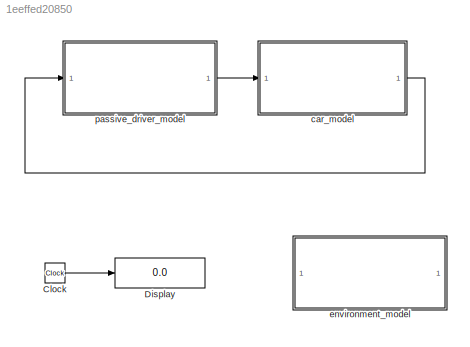
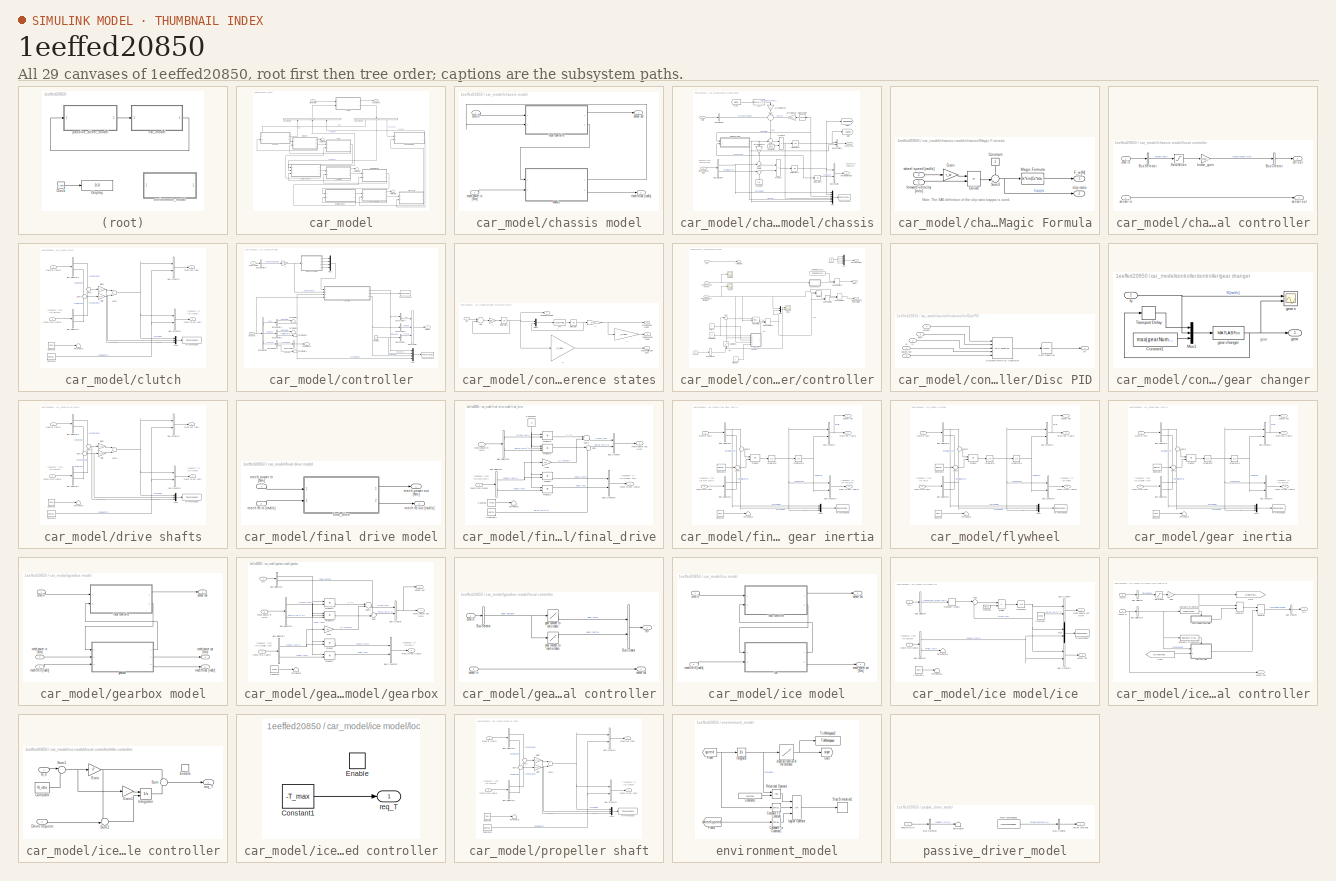
[diagram: thumbnail index - all 29 canvases of the model, root first then tree order]
MODEL slx_1eeffed20850
KIND model
BLOCK [Clock] Clock
BLOCK [Display] Display
  Decimation = 1
  Lockdown = off
  Ports = [1]
BLOCK [SubSystem] car_model
  FunctionWithSeparateData = off
  MaskHideContents = off
  MinAlgLoopOccurrences = off
  Opaque = off
  Ports = [1, 1]
  PropExecContextOutsideSubsystem = off
  RTWSystemCode = Auto
  RequestExecContextInheritance = off
BLOCK [BusCreator] car_model/Bus Creator
  DisplayOption = bar
  Inputs = 3
  Ports = [3, 1]
BLOCK [BusSelector] car_model/Bus Selector
  OutputSignals = ice,gearbox,chassis
  Ports = [1, 3]
BLOCK [Terminator] car_model/Terminator1
BLOCK [Terminator] car_model/Terminator2
BLOCK [Terminator] car_model/Terminator3
BLOCK [SubSystem] car_model/chassis model
  AncestorBlock = capsim_lib/Chassis/chassis_model_template
  FunctionWithSeparateData = off
  MaskHideContents = off
  MinAlgLoopOccurrences = off
  Opaque = off
  Ports = [2, 2]
  PropExecContextOutsideSubsystem = off
  RTWSystemCode = Auto
  RequestExecContextInheritance = off
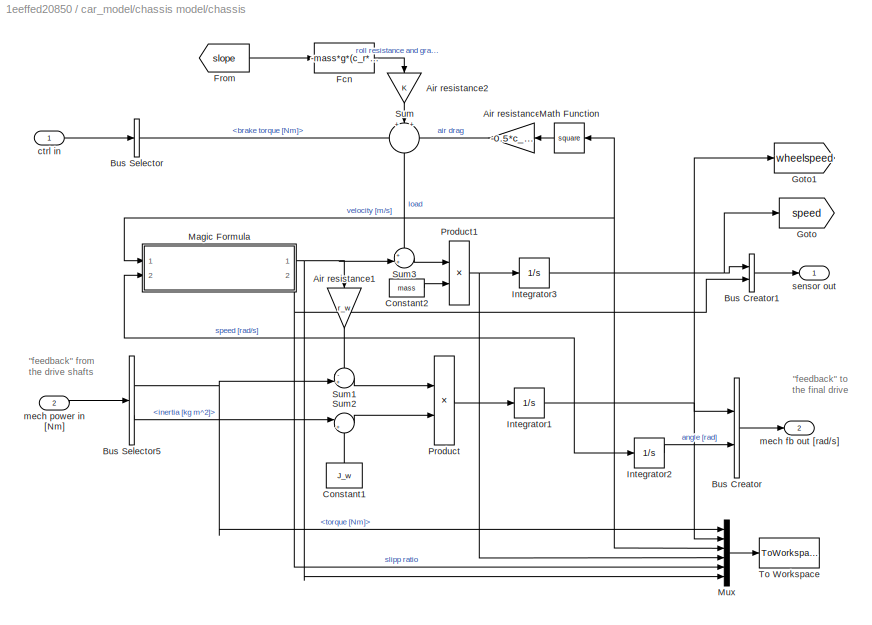
BLOCK [SubSystem] car_model/chassis model/chassis
  FunctionWithSeparateData = off
  MaskHideContents = off
  MinAlgLoopOccurrences = off
  Opaque = off
  Ports = [2, 2]
  PropExecContextOutsideSubsystem = off
  RTWSystemCode = Auto
  RequestExecContextInheritance = off
BLOCK [Gain] car_model/chassis model/chassis/Air resistance
  Gain = -0.5*c_w*A_a*Rho_a
BLOCK [Gain] car_model/chassis model/chassis/Air resistance1
  Gain = r_w
BLOCK [Gain] car_model/chassis model/chassis/Air resistance2
BLOCK [BusCreator] car_model/chassis model/chassis/Bus Creator
  DisplayOption = bar
  Inputs = 2
  Ports = [2, 1]
BLOCK [BusCreator] car_model/chassis model/chassis/Bus Creator1
  DisplayOption = bar
  Inputs = 2
  Ports = [2, 1]
BLOCK [BusSelector] car_model/chassis model/chassis/Bus Selector
  OutputSignals = brake torque [Nm]
  Ports = [1, 1]
BLOCK [BusSelector] car_model/chassis model/chassis/Bus Selector5
  OutputSignals = torque [Nm],inertia [kg m^2]
  Ports = [1, 2]
BLOCK [Constant] car_model/chassis model/chassis/Constant1
  Value = J_w
BLOCK [Constant] car_model/chassis model/chassis/Constant2
  Value = mass
BLOCK [Fcn] car_model/chassis model/chassis/Fcn
  Expr = -mass*g*(c_r*cos(u) + sin(u))
BLOCK [From] car_model/chassis model/chassis/From
  CloseFcn = tagdialog Close
  GotoTag = slope
  TagVisibility = global
BLOCK [Goto] car_model/chassis model/chassis/Goto
  GotoTag = speed
  TagVisibility = global
BLOCK [Goto] car_model/chassis model/chassis/Goto1
  GotoTag = wheelspeed
  TagVisibility = global
BLOCK [Integrator] car_model/chassis model/chassis/Integrator1
  InitialCondition = init_d
  Ports = [1, 1]
BLOCK [Integrator] car_model/chassis model/chassis/Integrator2
  Ports = [1, 1]
BLOCK [Integrator] car_model/chassis model/chassis/Integrator3
  InitialCondition = init_d*r_w
  Ports = [1, 1]
BLOCK [SubSystem] car_model/chassis model/chassis/Magic Formula
  FunctionWithSeparateData = off
  MaskHideContents = off
  MinAlgLoopOccurrences = off
  Opaque = off
  Ports = [2, 2]
  PropExecContextOutsideSubsystem = off
  RTWSystemCode = Auto
  RequestExecContextInheritance = off
BLOCK [Constant] car_model/chassis model/chassis/Magic Formula/Constant
BLOCK [Product] car_model/chassis model/chassis/Magic Formula/Divide
  InputSameDT = off
  Inputs = */
  OutDataTypeStr = Inherit: Inherit via internal rule
  Ports = [2, 1]
  RndMeth = Floor
  SaturateOnIntegerOverflow = off
BLOCK [Outport] car_model/chassis model/chassis/Magic Formula/F_w [N]
  IconDisplay = Port number
BLOCK [Gain] car_model/chassis model/chassis/Magic Formula/Gain
  Gain = r_w
  OutDataTypeStr = Inherit: Inherit via internal rule
  ParamDataTypeStr = Inherit: Inherit via internal rule
  SaturateOnIntegerOverflow = off
BLOCK [Fcn] car_model/chassis model/chassis/Magic Formula/Magic Formula
  Expr = Dx*sin(Cx*atan(Bx*u-Ex*(Bx*u-atan(Bx*u))))
BLOCK [Sum] car_model/chassis model/chassis/Magic Formula/Sum3
  IconShape = round
  InputSameDT = off
  Inputs = -+|
  OutDataTypeStr = Inherit: Inherit via internal rule
  Ports = [2, 1]
  SaturateOnIntegerOverflow = off
BLOCK [Inport] car_model/chassis model/chassis/Magic Formula/forward velocity [m//s]
  IconDisplay = Port number
BLOCK [Outport] car_model/chassis model/chassis/Magic Formula/slip ratio
  IconDisplay = Port number
  Port = 2
BLOCK [Inport] car_model/chassis model/chassis/Magic Formula/wheel speed [rad//s]
  IconDisplay = Port number
  Port = 2
BLOCK [Math] car_model/chassis model/chassis/Math Function
  Operator = square
  Ports = [1, 1]
BLOCK [Mux] car_model/chassis model/chassis/Mux
  DisplayOption = bar
  Inputs = 6
  Ports = [6, 1]
BLOCK [Product] car_model/chassis model/chassis/Product
  InputSameDT = off
  Inputs = */
  Ports = [2, 1]
  RndMeth = Floor
BLOCK [Product] car_model/chassis model/chassis/Product1
  InputSameDT = off
  Inputs = */
  Ports = [2, 1]
  RndMeth = Floor
BLOCK [Sum] car_model/chassis model/chassis/Sum
  IconShape = round
  InputSameDT = off
  Inputs = +|+|+
  OutDataTypeStr = Inherit: Inherit via internal rule
  Ports = [3, 1]
BLOCK [Sum] car_model/chassis model/chassis/Sum1
  IconShape = round
  InputSameDT = off
  Inputs = -+|
  OutDataTypeStr = Inherit: Inherit via internal rule
  Ports = [2, 1]
BLOCK [Sum] car_model/chassis model/chassis/Sum2
  IconShape = round
  InputSameDT = off
  Inputs = |++
  OutDataTypeStr = Inherit: Inherit via internal rule
  Ports = [2, 1]
BLOCK [Sum] car_model/chassis model/chassis/Sum3
  IconShape = round
  InputSameDT = off
  Inputs = ++|
  OutDataTypeStr = Inherit: Inherit via internal rule
  Ports = [2, 1]
BLOCK [ToWorkspace] car_model/chassis model/chassis/To Workspace
  MaxDataPoints = inf
  Ports = [1]
  SampleTime = -1
  VariableName = chassisout
BLOCK [Inport] car_model/chassis model/chassis/ctrl in
  IconDisplay = Port number
BLOCK [Outport] car_model/chassis model/chassis/mech fb out [rad//s]
  IconDisplay = Port number
  Port = 2
BLOCK [Inport] car_model/chassis model/chassis/mech power in [Nm]
  IconDisplay = Port number
  Port = 2
BLOCK [Outport] car_model/chassis model/chassis/sensor out
  IconDisplay = Port number
BLOCK [Inport] car_model/chassis model/cmd in
  IconDisplay = Port number
BLOCK [SubSystem] car_model/chassis model/local controller
  FunctionWithSeparateData = off
  MaskHideContents = off
  MinAlgLoopOccurrences = off
  Opaque = off
  Ports = [2, 2]
  PropExecContextOutsideSubsystem = off
  RTWSystemCode = Auto
  RequestExecContextInheritance = off
BLOCK [BusCreator] car_model/chassis model/local controller/Bus Creator
  DisplayOption = bar
  Inputs = 1
  Ports = [1, 1]
BLOCK [BusSelector] car_model/chassis model/local controller/Bus Selector
  OutputSignals = brake level
  Ports = [1, 1]
BLOCK [Saturate] car_model/chassis model/local controller/Saturation
  InputPortMap = u0
  LowerLimit = 0
  Ports = [1, 1]
  UpperLimit = 1
BLOCK [Gain] car_model/chassis model/local controller/brake_gain
  Gain = -brake_gain
BLOCK [Inport] car_model/chassis model/local controller/cmd in
  IconDisplay = Port number
BLOCK [Outport] car_model/chassis model/local controller/ctrl out
  IconDisplay = Port number
  Port = 2
BLOCK [Inport] car_model/chassis model/local controller/sensor in
  IconDisplay = Port number
  Port = 2
BLOCK [Outport] car_model/chassis model/local controller/sensor out
  IconDisplay = Port number
BLOCK [Outport] car_model/chassis model/mech fb out [rad//s]
  IconDisplay = Port number
  Port = 2
BLOCK [Inport] car_model/chassis model/mech power in [Nm]
  IconDisplay = Port number
  Port = 2
BLOCK [Outport] car_model/chassis model/sensor out
  IconDisplay = Port number
BLOCK [SubSystem] car_model/clutch
  AncestorBlock = capsim_lib/MechConverter/mechconverter_simple1_std
  FunctionWithSeparateData = off
  MaskHideContents = off
  MinAlgLoopOccurrences = off
  Opaque = off
  Ports = [2, 2]
  PropExecContextOutsideSubsystem = off
  RTWSystemCode = Auto
  RequestExecContextInheritance = off
BLOCK [BusCreator] car_model/clutch/Bus Creator1
  DisplayOption = bar
  Inputs = 2
  Ports = [2, 1]
BLOCK [BusCreator] car_model/clutch/Bus Creator5
  DisplayOption = bar
  Inputs = 2
  Ports = [2, 1]
BLOCK [BusSelector] car_model/clutch/Bus Selector1
  OutputSignals = speed [rad/s],angle [rad]
  Ports = [1, 2]
BLOCK [BusSelector] car_model/clutch/Bus Selector5
  OutputSignals = speed [rad/s],angle [rad]
  Ports = [1, 2]
BLOCK [Constant] car_model/clutch/Constant
  Value = mass
BLOCK [Constant] car_model/clutch/Constant1
  Value = inertia
BLOCK [Gain] car_model/clutch/Gain
  Gain = k_c
  OutDataTypeStr = Inherit: Inherit via internal rule
  ParamDataTypeStr = Inherit: Inherit via internal rule
  SaturateOnIntegerOverflow = off
BLOCK [Gain] car_model/clutch/Gain1
  Gain = c_c
  OutDataTypeStr = Inherit: Inherit via internal rule
  ParamDataTypeStr = Inherit: Inherit via internal rule
  SaturateOnIntegerOverflow = off
BLOCK [Mux] car_model/clutch/Mux
  DisplayOption = bar
  Inputs = 3
  Ports = [3, 1]
BLOCK [Sum] car_model/clutch/Sum2
  IconShape = round
  InputSameDT = off
  Inputs = +|-
  OutDataTypeStr = Inherit: Inherit via internal rule
  Ports = [2, 1]
BLOCK [Sum] car_model/clutch/Sum3
  IconShape = round
  InputSameDT = off
  Inputs = +|-
  OutDataTypeStr = Inherit: Inherit via internal rule
  Ports = [2, 1]
BLOCK [Sum] car_model/clutch/Sum4
  InputSameDT = off
  OutDataTypeStr = Inherit: Inherit via internal rule
  Ports = [2, 1]
  SaturateOnIntegerOverflow = off
BLOCK [Terminator] car_model/clutch/Terminator
BLOCK [ToWorkspace] car_model/clutch/To Workspace
  MaxDataPoints = inf
  Ports = [1]
  SampleTime = -1
  VariableName = clutchout
BLOCK [Inport] car_model/clutch/mech fb in [rad//s]
  IconDisplay = Port number
  Port = 2
BLOCK [Outport] car_model/clutch/mech fb out [Nm]
  IconDisplay = Port number
  Port = 2
BLOCK [Inport] car_model/clutch/mech in [rad//s]
  IconDisplay = Port number
BLOCK [Outport] car_model/clutch/mech out [Nm]
  IconDisplay = Port number
BLOCK [SubSystem] car_model/controller
  AncestorBlock = capsim_lib/Controller/controller_template
  FunctionWithSeparateData = off
  MaskHideContents = off
  MinAlgLoopOccurrences = off
  Opaque = off
  Ports = [2, 2]
  PropExecContextOutsideSubsystem = off
  RTWSystemCode = Auto
  RequestExecContextInheritance = off
BLOCK [Gain] car_model/controller/4
  Gain = T_max
  OutDataTypeStr = Inherit: Inherit via internal rule
  ParamDataTypeStr = Inherit: Inherit via internal rule
  SaturateOnIntegerOverflow = off
BLOCK [BusCreator] car_model/controller/Bus Creator
  DisplayOption = bar
  Inputs = 3
  Ports = [3, 1]
BLOCK [BusCreator] car_model/controller/Bus Creator1
  DisplayOption = bar
  Inputs = 1
  Ports = [1, 1]
BLOCK [BusCreator] car_model/controller/Bus Creator3
  DisplayOption = bar
  Inputs = 1
  Ports = [1, 1]
BLOCK [BusCreator] car_model/controller/Bus Creator4
  DisplayOption = bar
  Inputs = 1
  Ports = [1, 1]
BLOCK [BusCreator] car_model/controller/Bus Creator5
  DisplayOption = bar
  Inputs = 1
  Ports = [1, 1]
BLOCK [BusSelector] car_model/controller/Bus Selector
  OutputSignals = ice,gearbox,chassis
  Ports = [1, 3]
BLOCK [BusSelector] car_model/controller/Bus Selector1
  OutputSignals = torque [Nm],speed [rad/s]
  Ports = [1, 2]
BLOCK [BusSelector] car_model/controller/Bus Selector3
  OutputSignals = torque [Nm],inertia [kg m^2]
  Ports = [1, 2]
BLOCK [BusSelector] car_model/controller/Bus Selector4
  OutputSignals = velocity [m/s],slipp ratio
  Ports = [1, 2]
BLOCK [BusSelector] car_model/controller/Bus Selector5
  OutputSignals = Torque demand [%]
  Ports = [1, 1]
BLOCK [Constant] car_model/controller/Constant
  Value = 0
BLOCK [Mux] car_model/controller/Mux
  DisplayOption = bar
  Ports = [4, 1]
BLOCK [Mux] car_model/controller/Mux1
  DisplayOption = bar
  Ports = [4, 1]
BLOCK [SubSystem] car_model/controller/Reference states
  FunctionWithSeparateData = off
  MaskHideContents = off
  MinAlgLoopOccurrences = off
  Opaque = off
  Ports = [1, 4]
  PropExecContextOutsideSubsystem = off
  RTWSystemCode = Auto
  RequestExecContextInheritance = off
BLOCK [Gain] car_model/controller/Reference states/1
  Gain = i_f*gearRatio(1)
  OutDataTypeStr = Inherit: Inherit via internal rule
  ParamDataTypeStr = Inherit: Inherit via internal rule
  SaturateOnIntegerOverflow = off
BLOCK [Gain] car_model/controller/Reference states/2
  Gain = 1/tau_e
  OutDataTypeStr = Inherit: Inherit via internal rule
  ParamDataTypeStr = Inherit: Inherit via internal rule
  SaturateOnIntegerOverflow = off
BLOCK [Gain] car_model/controller/Reference states/5
  Gain = 1/r_w
  OutDataTypeStr = Inherit: Inherit via internal rule
  ParamDataTypeStr = Inherit: Inherit via internal rule
  SaturateOnIntegerOverflow = off
BLOCK [Gain] car_model/controller/Reference states/6
  Gain = i_f*gearRatio(1)/k_d
  OutDataTypeStr = Inherit: Inherit via internal rule
  ParamDataTypeStr = Inherit: Inherit via internal rule
  SaturateOnIntegerOverflow = off
BLOCK [Sum] car_model/controller/Reference states/Add
  InputSameDT = off
  Inputs = +-
  OutDataTypeStr = Inherit: Inherit via internal rule
  Ports = [2, 1]
  SaturateOnIntegerOverflow = off
BLOCK [Outport] car_model/controller/Reference states/Drive shaft torsion [rad]
  IconDisplay = Port number
BLOCK [Outport] car_model/controller/Reference states/Engine speed [rad//s]
  IconDisplay = Port number
  Port = 2
BLOCK [Outport] car_model/controller/Reference states/Engine torque [Nm]
  IconDisplay = Port number
  Port = 4
BLOCK [Fcn] car_model/controller/Reference states/Fcn
  Expr = (i_f*gearRatio(1)/r_w*u(1)-0.5*Rho_a*c_w*A_a*u(2)^2-mass*g*c_r)/(mass+i_f^2*gearRatio(1)^2/r_w^2*J_e)
BLOCK [Inport] car_model/controller/Reference states/In1
  IconDisplay = Port number
BLOCK [Integrator] car_model/controller/Reference states/Integrator
  InitialCondition = 28/3.6
  Ports = [1, 1]
BLOCK [Integrator] car_model/controller/Reference states/Integrator1
  InitialCondition = -8
  Ports = [1, 1]
BLOCK [Mux] car_model/controller/Reference states/Mux6
  DisplayOption = bar
  Inputs = 2
  Ports = [2, 1]
BLOCK [Outport] car_model/controller/Reference states/Wheel speed [rad//s]
  IconDisplay = Port number
  Port = 3
BLOCK [Terminator] car_model/controller/Terminator1
BLOCK [Terminator] car_model/controller/Terminator3
BLOCK [Terminator] car_model/controller/Terminator5
BLOCK [Terminator] car_model/controller/Terminator6
BLOCK [ToWorkspace] car_model/controller/To Workspace
  MaxDataPoints = inf
  Ports = [1]
  SampleTime = -1
  VariableName = controllerout
BLOCK [ToWorkspace] car_model/controller/To Workspace1
  MaxDataPoints = inf
  Ports = [1]
  SampleTime = -1
  VariableName = obsstates
BLOCK [Outport] car_model/controller/cmd out
  IconDisplay = Port number
  Port = 2
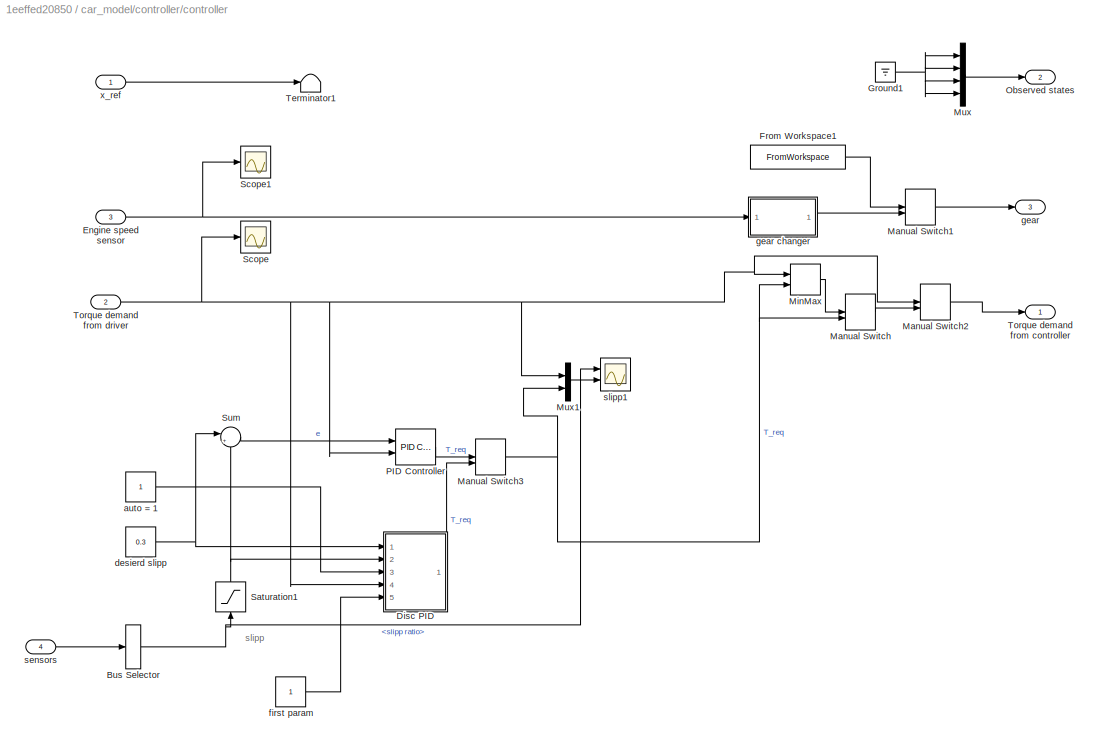
BLOCK [SubSystem] car_model/controller/controller
  FunctionWithSeparateData = off
  MaskHideContents = off
  MinAlgLoopOccurrences = off
  Opaque = off
  Ports = [4, 3]
  PropExecContextOutsideSubsystem = off
  RTWSystemCode = Auto
  RequestExecContextInheritance = off
BLOCK [BusSelector] car_model/controller/controller/Bus Selector
  OutputSignals = chassis.slipp ratio
  Ports = [1, 1]
BLOCK [SubSystem] car_model/controller/controller/Disc PID
  FunctionWithSeparateData = off
  MaskHideContents = off
  MinAlgLoopOccurrences = off
  Opaque = off
  Ports = [5, 1]
  PropExecContextOutsideSubsystem = off
  RTWSystemCode = Auto
  RequestExecContextInheritance = off
BLOCK [M-S-Function] car_model/controller/controller/Disc PID/Discrete-Time PID Controller
  FunctionName = mypidcontroller
  Parameters = [K;Ti;Td;mu;theta],ubounds,Ts,nofstates,fname
  Ports = [5, 1]
BLOCK [RateTransition] car_model/controller/controller/Disc PID/Rate Transition
BLOCK [Inport] car_model/controller/controller/Disc PID/amn
  IconDisplay = Port number
  Port = 3
BLOCK [Inport] car_model/controller/controller/Disc PID/param set
  IconDisplay = Port number
  Port = 5
BLOCK [Inport] car_model/controller/controller/Disc PID/rn
  IconDisplay = Port number
BLOCK [Inport] car_model/controller/controller/Disc PID/umann
  IconDisplay = Port number
  Port = 4
BLOCK [Outport] car_model/controller/controller/Disc PID/un
  IconDisplay = Port number
BLOCK [Inport] car_model/controller/controller/Disc PID/yn
  IconDisplay = Port number
  Port = 2
BLOCK [Inport] car_model/controller/controller/Engine speed sensor
  IconDisplay = Port number
  Port = 3
BLOCK [FromWorkspace] car_model/controller/controller/From Workspace1
  SampleTime = 0
  VariableName = [InputT InputG]
  ZeroCross = on
BLOCK [Ground] car_model/controller/controller/Ground1
BLOCK [ManualSwitch] car_model/controller/controller/Manual Switch
  CurrentSetting = 0
BLOCK [ManualSwitch] car_model/controller/controller/Manual Switch1
  CurrentSetting = 0
BLOCK [ManualSwitch] car_model/controller/controller/Manual Switch2
  CurrentSetting = 0
BLOCK [ManualSwitch] car_model/controller/controller/Manual Switch3
  CurrentSetting = 0
BLOCK [MinMax] car_model/controller/controller/MinMax
  InputSameDT = off
  Inputs = 2
  Ports = [2, 1]
  SaturateOnIntegerOverflow = off
BLOCK [Mux] car_model/controller/controller/Mux
  DisplayOption = bar
  Ports = [4, 1]
BLOCK [Mux] car_model/controller/controller/Mux1
  DisplayOption = bar
  Inputs = 2
  Ports = [2, 1]
BLOCK [Outport] car_model/controller/controller/Observed states
  IconDisplay = Port number
  Port = 2
BLOCK [Reference] car_model/controller/controller/PID Controller  REF=simulink/Continuous/PID Controller
  AntiWindupMode = back-calculation
  Controller = PID
  D = 112.335024874473
  DOutDataTypeStr = Inherit: Inherit via internal rule
  DOutMax = []
  DOutMin = []
  DParamDataTypeStr = Inherit: Inherit via internal rule
  DParamMax = []
  DParamMin = []
  ExternalReset = none
  FilterContinuousStateAttributes = ''
  FilterMethod = Forward Euler
  FilterOutDataTypeStr = Inherit: Inherit via internal rule
  FilterOutMax = []
  FilterOutMin = []
  FilterRTWStateStorageClass = Auto
  FilterStateMustResolveToSignalObject = off
  Form = Parallel
  I = 7225.43584206017
  IOutDataTypeStr = Inherit: Inherit via internal rule
  IOutMax = []
  IOutMin = []
  IParamDataTypeStr = Inherit: Inherit via internal rule
  IParamMax = []
  IParamMin = []
  IgnoreLimit = off
  InitialConditionForFilter = 0
  InitialConditionForIntegrator = 0
  InitialConditionSource = internal
  IntegratorContinuousStateAttributes = ''
  IntegratorMethod = Forward Euler
  IntegratorOutDataTypeStr = Inherit: Inherit via internal rule
  IntegratorOutMax = []
  IntegratorOutMin = []
  IntegratorRTWStateStorageClass = Auto
  IntegratorStateMustResolveToSignalObject = off
  Kb = 0.2
  KbOutDataTypeStr = Inherit: Inherit via internal rule
  KbOutMax = []
  KbOutMin = []
  KbParamDataTypeStr = Inherit: Inherit via internal rule
  KbParamMax = []
  KbParamMin = []
  Kt = 0.2
  KtOutDataTypeStr = Inherit: Inherit via internal rule
  KtOutMax = []
  KtOutMin = []
  KtParamDataTypeStr = Inherit: Inherit via internal rule
  KtParamMax = []
  KtParamMin = []
  LimitOutput = on
  LinearizeAsGain = off
  LockScale = off
  LowerSaturationLimit = 0
  N = 1322.21781915865
  NOutDataTypeStr = Inherit: Inherit via internal rule
  NOutMax = []
  NOutMin = []
  NParamDataTypeStr = Inherit: Inherit via internal rule
  NParamMax = []
  NParamMin = []
  P = 1807.69288725995
  POutDataTypeStr = Inherit: Inherit via internal rule
  POutMax = []
  POutMin = []
  PParamDataTypeStr = Inherit: Inherit via internal rule
  PParamMax = []
  PParamMin = []
  Ports = [2, 1]
  RndMeth = Floor
  SampleTime = 1
  SaturateOnIntegerOverflow = off
  SaturationOutDataTypeStr = Inherit: Same as input
  SaturationOutMax = []
  SaturationOutMin = []
  SourceBlock = simulink/Continuous/PID Controller
  SourceType = PID 1dof
  SumAccumDataTypeStr = Inherit: Inherit via internal rule
  SumDAccumDataTypeStr = Inherit: Inherit via internal rule
  SumDOutDataTypeStr = Inherit: Inherit via internal rule
  SumDOutMax = []
  SumDOutMin = []
  SumI1AccumDataTypeStr = Inherit: Inherit via internal rule
  SumI1OutDataTypeStr = Inherit: Inherit via internal rule
  SumI1OutMax = []
  SumI1OutMin = []
  SumI2AccumDataTypeStr = Inherit: Inherit via internal rule
  SumI2OutDataTypeStr = Inherit: Inherit via internal rule
  SumI2OutMax = []
  SumI2OutMin = []
  SumI3AccumDataTypeStr = Inherit: Inherit via internal rule
  SumI3OutDataTypeStr = Inherit: Inherit via internal rule
  SumI3OutMax = []
  SumI3OutMin = []
  SumOutDataTypeStr = Inherit: Inherit via internal rule
  SumOutMax = []
  SumOutMin = []
  TimeDomain = Continuous-time
  TrackingMode = on
  UpperSaturationLimit = T_max
  ZeroCross = on
BLOCK [Saturate] car_model/controller/controller/Saturation1
  InputPortMap = u0
  LowerLimit = -inf
  Ports = [1, 1]
  UpperLimit = 1
BLOCK [Scope] car_model/controller/controller/Scope
  DataFormat = StructureWithTime
  Floating = off
  NumInputPorts = 1
  Ports = [1]
  SampleTime = 0
  ShowLegends = off
  TimeRange = 100
  YMax = 400
  YMin = -50
BLOCK [Scope] car_model/controller/controller/Scope1
  DataFormat = StructureWithTime
  Floating = off
  NumInputPorts = 1
  Ports = [1]
  SampleTime = 0
  SaveName = ScopeData1
  ShowLegends = off
BLOCK [Sum] car_model/controller/controller/Sum
  IconShape = round
  InputSameDT = off
  Inputs = |+-
  OutDataTypeStr = Inherit: Inherit via internal rule
  Ports = [2, 1]
  SaturateOnIntegerOverflow = off
BLOCK [Terminator] car_model/controller/controller/Terminator1
BLOCK [Outport] car_model/controller/controller/Torque demand from controller
  IconDisplay = Port number
BLOCK [Inport] car_model/controller/controller/Torque demand from driver
  IconDisplay = Port number
  Port = 2
BLOCK [Constant] car_model/controller/controller/auto = 1
BLOCK [Constant] car_model/controller/controller/desierd slipp
  Value = 0.3
BLOCK [Constant] car_model/controller/controller/first param
BLOCK [Outport] car_model/controller/controller/gear
  IconDisplay = Port number
  Port = 3
BLOCK [SubSystem] car_model/controller/controller/gear changer
  FunctionWithSeparateData = off
  MaskHideContents = off
  MinAlgLoopOccurrences = off
  Opaque = off
  Ports = [1, 1]
  PropExecContextOutsideSubsystem = off
  RTWSystemCode = Auto
  RequestExecContextInheritance = off
BLOCK [Constant] car_model/controller/controller/gear changer/Constant1
  Value = max(gearNumber)
BLOCK [Mux] car_model/controller/controller/gear changer/Mux1
  DisplayOption = bar
  Inputs = 3
  Ports = [3, 1]
BLOCK [Inport] car_model/controller/controller/gear changer/N
  IconDisplay = Port number
BLOCK [TransportDelay] car_model/controller/controller/gear changer/Transport Delay
  DelayTime = 0.07
  Ports = [1, 1]
BLOCK [Outport] car_model/controller/controller/gear changer/gear
  IconDisplay = Port number
BLOCK [MATLABFcn] car_model/controller/controller/gear changer/gear changer
  MATLABFcn = gearchange(u(1),u(2),u(3))
  Ports = [1, 1]
BLOCK [Scope] car_model/controller/controller/gear changer/gear s
  DataFormat = StructureWithTime
  Floating = off
  LegendLocations = 0.9306     0.93925    0.050418    0.022044\n0.91445     0.46425    0.066614    0.022044
  LimitDataPoints = off
  NumInputPorts = 2
  Ports = [2]
  SampleTime = 0
  SaveName = ScopeData7
  ShowLegends = on
  YMax = 5~5
  YMin = -5~-5
BLOCK [Inport] car_model/controller/controller/sensors
  IconDisplay = Port number
  Port = 4
BLOCK [Scope] car_model/controller/controller/slipp1
  DataFormat = StructureWithTime
  Floating = off
  LimitDataPoints = off
  NumInputPorts = 2
  Ports = [2]
  SampleTime = 0
  SaveName = ScopeData2
  ShowLegends = on
  TimeRange = 100
  YMax = 3~400
  YMin = -0.5~-25
BLOCK [Inport] car_model/controller/controller/x_ref
  IconDisplay = Port number
BLOCK [Inport] car_model/controller/driver cmd in
  IconDisplay = Port number
BLOCK [Inport] car_model/controller/sensor in
  IconDisplay = Port number
  Port = 2
BLOCK [Outport] car_model/controller/vehicle fb out
  IconDisplay = Port number
BLOCK [SubSystem] car_model/drive shafts
  AncestorBlock = capsim_lib/MechConverter/mechconverter_simple1_std
  FunctionWithSeparateData = off
  MaskHideContents = off
  MinAlgLoopOccurrences = off
  Opaque = off
  Ports = [2, 2]
  PropExecContextOutsideSubsystem = off
  RTWSystemCode = Auto
  RequestExecContextInheritance = off
BLOCK [BusCreator] car_model/drive shafts/Bus Creator1
  DisplayOption = bar
  Inputs = 2
  Ports = [2, 1]
BLOCK [BusCreator] car_model/drive shafts/Bus Creator5
  DisplayOption = bar
  Inputs = 2
  Ports = [2, 1]
BLOCK [BusSelector] car_model/drive shafts/Bus Selector1
  OutputSignals = speed [rad/s],angle [rad]
  Ports = [1, 2]
BLOCK [BusSelector] car_model/drive shafts/Bus Selector5
  OutputSignals = speed [rad/s],angle [rad]
  Ports = [1, 2]
BLOCK [Constant] car_model/drive shafts/Constant
  Value = mass
BLOCK [Constant] car_model/drive shafts/Constant1
  Value = inertia
BLOCK [Gain] car_model/drive shafts/Gain
  Gain = k_d
  OutDataTypeStr = Inherit: Inherit via internal rule
  ParamDataTypeStr = Inherit: Inherit via internal rule
  SaturateOnIntegerOverflow = off
BLOCK [Gain] car_model/drive shafts/Gain1
  Gain = c_d
  OutDataTypeStr = Inherit: Inherit via internal rule
  ParamDataTypeStr = Inherit: Inherit via internal rule
  SaturateOnIntegerOverflow = off
BLOCK [Mux] car_model/drive shafts/Mux
  DisplayOption = bar
  Inputs = 3
  Ports = [3, 1]
BLOCK [Sum] car_model/drive shafts/Sum2
  IconShape = round
  InputSameDT = off
  Inputs = +|-
  OutDataTypeStr = Inherit: Inherit via internal rule
  Ports = [2, 1]
BLOCK [Sum] car_model/drive shafts/Sum3
  IconShape = round
  InputSameDT = off
  Inputs = +|-
  OutDataTypeStr = Inherit: Inherit via internal rule
  Ports = [2, 1]
BLOCK [Sum] car_model/drive shafts/Sum4
  InputSameDT = off
  OutDataTypeStr = Inherit: Inherit via internal rule
  Ports = [2, 1]
  SaturateOnIntegerOverflow = off
BLOCK [Terminator] car_model/drive shafts/Terminator
BLOCK [ToWorkspace] car_model/drive shafts/To Workspace
  MaxDataPoints = inf
  Ports = [1]
  SampleTime = -1
  VariableName = driveshaftsout
BLOCK [Inport] car_model/drive shafts/mech fb in [rad//s]
  IconDisplay = Port number
  Port = 2
BLOCK [Outport] car_model/drive shafts/mech fb out [Nm]
  IconDisplay = Port number
  Port = 2
BLOCK [Inport] car_model/drive shafts/mech in [rad//s]
  IconDisplay = Port number
BLOCK [Outport] car_model/drive shafts/mech out [Nm]
  IconDisplay = Port number
BLOCK [Inport] car_model/driver cmd in
  IconDisplay = Port number
BLOCK [SubSystem] car_model/final drive model
  AncestorBlock = capsim_lib/Gearbox/gearbox_template
  FunctionWithSeparateData = off
  MaskHideContents = off
  MinAlgLoopOccurrences = off
  Opaque = off
  Ports = [2, 2]
  PropExecContextOutsideSubsystem = off
  RTWSystemCode = Auto
  RequestExecContextInheritance = off
BLOCK [SubSystem] car_model/final drive model/final_drive
  FunctionWithSeparateData = off
  MaskHideContents = off
  MinAlgLoopOccurrences = off
  Opaque = off
  Ports = [2, 2]
  PropExecContextOutsideSubsystem = off
  RTWSystemCode = Auto
  RequestExecContextInheritance = off
BLOCK [BusCreator] car_model/final drive model/final_drive/Bus Creator
  DisplayOption = bar
  Inputs = 2
  Ports = [2, 1]
BLOCK [BusCreator] car_model/final drive model/final_drive/Bus Creator5
  DisplayOption = bar
  Inputs = 2
  Ports = [2, 1]
BLOCK [BusSelector] car_model/final drive model/final_drive/Bus Selector1
  OutputSignals = speed [rad/s],angle [rad]
  Ports = [1, 2]
BLOCK [BusSelector] car_model/final drive model/final_drive/Bus Selector5
  OutputSignals = torque [Nm],inertia [kg m^2]
  Ports = [1, 2]
BLOCK [Constant] car_model/final drive model/final_drive/Constant
  Value = mass
BLOCK [Constant] car_model/final drive model/final_drive/Constant1
  Value = i_f
BLOCK [Constant] car_model/final drive model/final_drive/Constant4
  Value = inertia
BLOCK [Gain] car_model/final drive model/final_drive/Gain
  Gain = b_f
  OutDataTypeStr = Inherit: Inherit via internal rule
  ParamDataTypeStr = Inherit: Inherit via internal rule
  SaturateOnIntegerOverflow = off
BLOCK [Product] car_model/final drive model/final_drive/Product
  InputSameDT = off
  Inputs = **
  Ports = [2, 1]
  RndMeth = Floor
BLOCK [Product] car_model/final drive model/final_drive/Product1
  InputSameDT = off
  Inputs = **
  Ports = [2, 1]
  RndMeth = Floor
BLOCK [Product] car_model/final drive model/final_drive/Product2
  InputSameDT = off
  Ports = [2, 1]
  RndMeth = Floor
BLOCK [Product] car_model/final drive model/final_drive/Product3
  InputSameDT = off
  Inputs = 3
  Ports = [3, 1]
  RndMeth = Floor
BLOCK [Sum] car_model/final drive model/final_drive/Sum
  IconShape = round
  InputSameDT = off
  Inputs = |++
  OutDataTypeStr = Inherit: Inherit via internal rule
  Ports = [2, 1]
  SaturateOnIntegerOverflow = off
BLOCK [Sum] car_model/final drive model/final_drive/Sum1
  InputSameDT = off
  Inputs = +-
  OutDataTypeStr = Inherit: Inherit via internal rule
  Ports = [2, 1]
  SaturateOnIntegerOverflow = off
BLOCK [Terminator] car_model/final drive model/final_drive/Terminator
BLOCK [Inport] car_model/final drive model/final_drive/mech fb in [rad//s]
  IconDisplay = Port number
  Port = 2
BLOCK [Outport] car_model/final drive model/final_drive/mech fb out [rad//s]
  IconDisplay = Port number
  Port = 2
BLOCK [Inport] car_model/final drive model/final_drive/mech power in [Nm]
  IconDisplay = Port number
BLOCK [Outport] car_model/final drive model/final_drive/mech power out [Nm]
  IconDisplay = Port number
BLOCK [Inport] car_model/final drive model/mech fb in [rad//s]
  IconDisplay = Port number
  Port = 2
BLOCK [Outport] car_model/final drive model/mech fb out [rad//s]
  IconDisplay = Port number
  Port = 2
BLOCK [Inport] car_model/final drive model/mech power in [Nm]
  IconDisplay = Port number
BLOCK [Outport] car_model/final drive model/mech power out [Nm]
  IconDisplay = Port number
BLOCK [SubSystem] car_model/final gear inertia
  AncestorBlock = capsim_lib/Inertia/inertia_simple1_std
  FunctionWithSeparateData = off
  MaskHideContents = off
  MinAlgLoopOccurrences = off
  Opaque = off
  Ports = [2, 3]
  PropExecContextOutsideSubsystem = off
  RTWSystemCode = Auto
  RequestExecContextInheritance = off
BLOCK [BusCreator] car_model/final gear inertia/Bus Creator1
  DisplayOption = bar
  Inputs = 2
  Ports = [2, 1]
BLOCK [BusCreator] car_model/final gear inertia/Bus Creator5
  DisplayOption = bar
  Inputs = 2
  Ports = [2, 1]
BLOCK [BusSelector] car_model/final gear inertia/Bus Selector1
  OutputSignals = torque [Nm],inertia [kg m^2]
  Ports = [1, 2]
BLOCK [BusSelector] car_model/final gear inertia/Bus Selector5
  OutputSignals = torque [Nm],inertia [kg m^2]
  Ports = [1, 2]
BLOCK [Constant] car_model/final gear inertia/Constant
  Value = mass
BLOCK [Constant] car_model/final gear inertia/Constant1
  Value = inertia
BLOCK [Integrator] car_model/final gear inertia/Integrator
  InitialCondition = speedinit
  Ports = [1, 1]
BLOCK [Integrator] car_model/final gear inertia/Integrator1
  InitialCondition = angleinit
  Ports = [1, 1]
BLOCK [Mux] car_model/final gear inertia/Mux
  DisplayOption = bar
  Inputs = 3
  Ports = [3, 1]
BLOCK [Product] car_model/final gear inertia/Product
  InputSameDT = off
  Inputs = */
  Ports = [2, 1]
  RndMeth = Floor
BLOCK [Sum] car_model/final gear inertia/Sum1
  IconShape = round
  InputSameDT = off
  Inputs = +++
  OutDataTypeStr = Inherit: Inherit via internal rule
  Ports = [3, 1]
BLOCK [Sum] car_model/final gear inertia/Sum2
  IconShape = round
  InputSameDT = off
  Inputs = +|-
  OutDataTypeStr = Inherit: Inherit via internal rule
  Ports = [2, 1]
BLOCK [Terminator] car_model/final gear inertia/Terminator
BLOCK [ToWorkspace] car_model/final gear inertia/To Workspace
  MaxDataPoints = inf
  Ports = [1]
  SampleTime = -1
  VariableName = finalgearout
BLOCK [Inport] car_model/final gear inertia/mech fb in [Nm]
  IconDisplay = Port number
  Port = 2
BLOCK [Outport] car_model/final gear inertia/mech fb out [rad//s]
  IconDisplay = Port number
  Port = 3
BLOCK [Inport] car_model/final gear inertia/mech in [Nm]
  IconDisplay = Port number
BLOCK [Outport] car_model/final gear inertia/mech out [rad//s]
  IconDisplay = Port number
  Port = 2
BLOCK [Outport] car_model/final gear inertia/sensor out
  IconDisplay = Port number
BLOCK [SubSystem] car_model/flywheel
  AncestorBlock = capsim_lib/Inertia/inertia_simple1_std
  FunctionWithSeparateData = off
  MaskHideContents = off
  MinAlgLoopOccurrences = off
  Opaque = off
  Ports = [2, 3]
  PropExecContextOutsideSubsystem = off
  RTWSystemCode = Auto
  RequestExecContextInheritance = off
BLOCK [BusCreator] car_model/flywheel/Bus Creator1
  DisplayOption = bar
  Inputs = 2
  Ports = [2, 1]
BLOCK [BusCreator] car_model/flywheel/Bus Creator5
  DisplayOption = bar
  Inputs = 2
  Ports = [2, 1]
BLOCK [BusSelector] car_model/flywheel/Bus Selector1
  OutputSignals = torque [Nm],inertia [kg m^2]
  Ports = [1, 2]
BLOCK [BusSelector] car_model/flywheel/Bus Selector5
  OutputSignals = torque [Nm],inertia [kg m^ 2]
  Ports = [1, 2]
BLOCK [Constant] car_model/flywheel/Constant
  Value = mass
BLOCK [Constant] car_model/flywheel/Constant1
  Value = inertia
BLOCK [Integrator] car_model/flywheel/Integrator
  InitialCondition = speedinit
  Ports = [1, 1]
BLOCK [Integrator] car_model/flywheel/Integrator1
  InitialCondition = angleinit
  Ports = [1, 1]
BLOCK [Mux] car_model/flywheel/Mux
  DisplayOption = bar
  Inputs = 3
  Ports = [3, 1]
BLOCK [Product] car_model/flywheel/Product
  InputSameDT = off
  Inputs = */
  Ports = [2, 1]
  RndMeth = Floor
BLOCK [Sum] car_model/flywheel/Sum1
  IconShape = round
  InputSameDT = off
  Inputs = +++
  OutDataTypeStr = Inherit: Inherit via internal rule
  Ports = [3, 1]
BLOCK [Sum] car_model/flywheel/Sum2
  IconShape = round
  InputSameDT = off
  Inputs = +|-
  OutDataTypeStr = Inherit: Inherit via internal rule
  Ports = [2, 1]
BLOCK [Terminator] car_model/flywheel/Terminator
BLOCK [ToWorkspace] car_model/flywheel/To Workspace
  MaxDataPoints = inf
  Ports = [1]
  SampleTime = -1
  VariableName = flywheelout
BLOCK [Inport] car_model/flywheel/mech fb in [Nm]
  IconDisplay = Port number
  Port = 2
BLOCK [Outport] car_model/flywheel/mech fb out [rad//s]
  IconDisplay = Port number
  Port = 3
BLOCK [Inport] car_model/flywheel/mech in [Nm]
  IconDisplay = Port number
BLOCK [Outport] car_model/flywheel/mech out [rad//s]
  IconDisplay = Port number
  Port = 2
BLOCK [Outport] car_model/flywheel/sensor out
  IconDisplay = Port number
BLOCK [SubSystem] car_model/gear inertia
  AncestorBlock = capsim_lib/Inertia/inertia_simple1_std
  FunctionWithSeparateData = off
  MaskHideContents = off
  MinAlgLoopOccurrences = off
  Opaque = off
  Ports = [2, 3]
  PropExecContextOutsideSubsystem = off
  RTWSystemCode = Auto
  RequestExecContextInheritance = off
BLOCK [BusCreator] car_model/gear inertia/Bus Creator1
  DisplayOption = bar
  Inputs = 2
  Ports = [2, 1]
BLOCK [BusCreator] car_model/gear inertia/Bus Creator5
  DisplayOption = bar
  Inputs = 2
  Ports = [2, 1]
BLOCK [BusSelector] car_model/gear inertia/Bus Selector1
  OutputSignals = torque [Nm],inertia [kg m^2]
  Ports = [1, 2]
BLOCK [BusSelector] car_model/gear inertia/Bus Selector5
  OutputSignals = torque [Nm],inertia [kg m^2]
  Ports = [1, 2]
BLOCK [Constant] car_model/gear inertia/Constant
  Value = mass
BLOCK [Constant] car_model/gear inertia/Constant1
  Value = inertia
BLOCK [Integrator] car_model/gear inertia/Integrator
  InitialCondition = speedinit
  Ports = [1, 1]
BLOCK [Integrator] car_model/gear inertia/Integrator1
  InitialCondition = angleinit
  Ports = [1, 1]
BLOCK [Mux] car_model/gear inertia/Mux
  DisplayOption = bar
  Inputs = 3
  Ports = [3, 1]
BLOCK [Product] car_model/gear inertia/Product
  InputSameDT = off
  Inputs = */
  Ports = [2, 1]
  RndMeth = Floor
BLOCK [Sum] car_model/gear inertia/Sum1
  IconShape = round
  InputSameDT = off
  Inputs = +++
  OutDataTypeStr = Inherit: Inherit via internal rule
  Ports = [3, 1]
BLOCK [Sum] car_model/gear inertia/Sum2
  IconShape = round
  InputSameDT = off
  Inputs = +|-
  OutDataTypeStr = Inherit: Inherit via internal rule
  Ports = [2, 1]
BLOCK [Terminator] car_model/gear inertia/Terminator
BLOCK [ToWorkspace] car_model/gear inertia/To Workspace
  MaxDataPoints = inf
  Ports = [1]
  SampleTime = -1
  VariableName = gearinertiaout
BLOCK [Inport] car_model/gear inertia/mech fb in [Nm]
  IconDisplay = Port number
  Port = 2
BLOCK [Outport] car_model/gear inertia/mech fb out [rad//s]
  IconDisplay = Port number
  Port = 3
BLOCK [Inport] car_model/gear inertia/mech in [Nm]
  IconDisplay = Port number
BLOCK [Outport] car_model/gear inertia/mech out [rad//s]
  IconDisplay = Port number
  Port = 2
BLOCK [Outport] car_model/gear inertia/sensor out
  IconDisplay = Port number
BLOCK [SubSystem] car_model/gearbox model
  AncestorBlock = capsim_lib/Gearbox/gearbox_template
  FunctionWithSeparateData = off
  MaskHideContents = off
  MinAlgLoopOccurrences = off
  Opaque = off
  Ports = [3, 3]
  PropExecContextOutsideSubsystem = off
  RTWSystemCode = Auto
  RequestExecContextInheritance = off
BLOCK [Inport] car_model/gearbox model/cmd in
  IconDisplay = Port number
BLOCK [SubSystem] car_model/gearbox model/gearbox
  FunctionWithSeparateData = off
  MaskHideContents = off
  MinAlgLoopOccurrences = off
  Opaque = off
  Ports = [3, 3]
  PropExecContextOutsideSubsystem = off
  RTWSystemCode = Auto
  RequestExecContextInheritance = off
BLOCK [BusCreator] car_model/gearbox model/gearbox/Bus Creator
  DisplayOption = bar
  Inputs = 2
  Ports = [2, 1]
BLOCK [BusCreator] car_model/gearbox model/gearbox/Bus Creator5
  DisplayOption = bar
  Inputs = 2
  Ports = [2, 1]
BLOCK [BusSelector] car_model/gearbox model/gearbox/Bus Selector1
  OutputSignals = speed [rad/s],angle [rad]
  Ports = [1, 2]
BLOCK [BusSelector] car_model/gearbox model/gearbox/Bus Selector2
  OutputSignals = gear ratio,gear inertia
  Ports = [1, 2]
BLOCK [BusSelector] car_model/gearbox model/gearbox/Bus Selector5
  OutputSignals = torque [Nm],inertia [kg m^2]
  Ports = [1, 2]
BLOCK [Constant] car_model/gearbox model/gearbox/Constant
  Value = mass
BLOCK [Gain] car_model/gearbox model/gearbox/Gain
  Gain = b_t
  OutDataTypeStr = Inherit: Inherit via internal rule
  ParamDataTypeStr = Inherit: Inherit via internal rule
  SaturateOnIntegerOverflow = off
BLOCK [Product] car_model/gearbox model/gearbox/Product
  InputSameDT = off
  Inputs = **
  Ports = [2, 1]
  RndMeth = Floor
BLOCK [Product] car_model/gearbox model/gearbox/Product1
  InputSameDT = off
  Inputs = **
  Ports = [2, 1]
  RndMeth = Floor
BLOCK [Product] car_model/gearbox model/gearbox/Product2
  InputSameDT = off
  Ports = [2, 1]
  RndMeth = Floor
BLOCK [Product] car_model/gearbox model/gearbox/Product3
  InputSameDT = off
  Inputs = 3
  Ports = [3, 1]
  RndMeth = Floor
BLOCK [Sum] car_model/gearbox model/gearbox/Sum
  IconShape = round
  InputSameDT = off
  Inputs = ++|
  OutDataTypeStr = Inherit: Inherit via internal rule
  Ports = [2, 1]
  SaturateOnIntegerOverflow = off
BLOCK [Sum] car_model/gearbox model/gearbox/Sum1
  InputSameDT = off
  Inputs = +-
  OutDataTypeStr = Inherit: Inherit via internal rule
  Ports = [2, 1]
  SaturateOnIntegerOverflow = off
BLOCK [Terminator] car_model/gearbox model/gearbox/Terminator
BLOCK [Inport] car_model/gearbox model/gearbox/ctrl
  IconDisplay = Port number
BLOCK [Inport] car_model/gearbox model/gearbox/mech fb in [rad//s]
  IconDisplay = Port number
  Port = 3
BLOCK [Outport] car_model/gearbox model/gearbox/mech fb out [rad//s]
  IconDisplay = Port number
  Port = 3
BLOCK [Inport] car_model/gearbox model/gearbox/mech power in [Nm]
  IconDisplay = Port number
  Port = 2
BLOCK [Outport] car_model/gearbox model/gearbox/mech power out [Nm]
  IconDisplay = Port number
  Port = 2
BLOCK [Outport] car_model/gearbox model/gearbox/sensor out
  IconDisplay = Port number
BLOCK [SubSystem] car_model/gearbox model/local controller
  FunctionWithSeparateData = off
  MaskHideContents = off
  MinAlgLoopOccurrences = off
  Opaque = off
  Ports = [2, 2]
  PropExecContextOutsideSubsystem = off
  RTWSystemCode = Auto
  RequestExecContextInheritance = off
BLOCK [BusCreator] car_model/gearbox model/local controller/Bus Creator
  DisplayOption = bar
  Inputs = 2
  Ports = [2, 1]
BLOCK [BusSelector] car_model/gearbox model/local controller/Bus Selector
  OutputSignals = gear number
  Ports = [1, 1]
BLOCK [Inport] car_model/gearbox model/local controller/cmd in
  IconDisplay = Port number
BLOCK [Outport] car_model/gearbox model/local controller/ctrl
  IconDisplay = Port number
  Port = 2
BLOCK [Lookup] car_model/gearbox model/local controller/gear number to inertia table
  InputValues = gearNumber
  LookUpMeth = Interpolation-Use End Values
  Table = gearInertia
BLOCK [Lookup] car_model/gearbox model/local controller/gear number to ratio table
  InputValues = gearNumber
  LookUpMeth = Interpolation-Use End Values
  Table = gearRatio
BLOCK [Inport] car_model/gearbox model/local controller/sensor in
  IconDisplay = Port number
  Port = 2
BLOCK [Outport] car_model/gearbox model/local controller/sensor out
  IconDisplay = Port number
BLOCK [Inport] car_model/gearbox model/mech fb in [rad//s]
  IconDisplay = Port number
  Port = 3
BLOCK [Outport] car_model/gearbox model/mech fb out [rad//s]
  IconDisplay = Port number
  Port = 3
BLOCK [Inport] car_model/gearbox model/mech power in [Nm]
  IconDisplay = Port number
  Port = 2
BLOCK [Outport] car_model/gearbox model/mech power out [Nm]
  IconDisplay = Port number
  Port = 2
BLOCK [Outport] car_model/gearbox model/sensor out
  IconDisplay = Port number
BLOCK [SubSystem] car_model/ice model
  FunctionWithSeparateData = off
  MaskHideContents = off
  MinAlgLoopOccurrences = off
  Opaque = off
  Ports = [2, 2]
  PropExecContextOutsideSubsystem = off
  RTWSystemCode = Auto
  RequestExecContextInheritance = off
BLOCK [Inport] car_model/ice model/cmd in
  IconDisplay = Port number
BLOCK [SubSystem] car_model/ice model/ice
  FunctionWithSeparateData = off
  MaskHideContents = off
  MinAlgLoopOccurrences = off
  Opaque = off
  Ports = [2, 2]
  PropExecContextOutsideSubsystem = off
  RTWSystemCode = Auto
  RequestExecContextInheritance = off
BLOCK [BusCreator] car_model/ice model/ice/Bus Creator
  DisplayOption = bar
  Inputs = 2
  Ports = [2, 1]
BLOCK [BusCreator] car_model/ice model/ice/Bus Creator1
  DisplayOption = bar
  Inputs = 2
  Ports = [2, 1]
BLOCK [BusSelector] car_model/ice model/ice/Bus Selector
  OutputSignals = requested torque [Nm]
  Ports = [1, 1]
BLOCK [BusSelector] car_model/ice model/ice/Bus Selector1
  OutputSignals = speed [rad/s],angle [rad]
  Ports = [1, 2]
BLOCK [Constant] car_model/ice model/ice/Constant
  Value = tau_e
BLOCK [Constant] car_model/ice model/ice/Constant1
  Value = inertia
BLOCK [Constant] car_model/ice model/ice/Constant3
  Value = mass
BLOCK [Product] car_model/ice model/ice/Divide
  InputSameDT = off
  Inputs = */
  OutDataTypeStr = Inherit: Inherit via internal rule
  Ports = [2, 1]
  RndMeth = Floor
  SaturateOnIntegerOverflow = off
BLOCK [Integrator] car_model/ice model/ice/Integrator
  InitialCondition = init_T
  Ports = [1, 1]
BLOCK [Mux] car_model/ice model/ice/Mux
  DisplayOption = bar
  Inputs = 2
  Ports = [2, 1]
BLOCK [Sum] car_model/ice model/ice/Sum
  IconShape = round
  InputSameDT = off
  Inputs = |+-
  OutDataTypeStr = Inherit: Inherit via internal rule
  Ports = [2, 1]
  SaturateOnIntegerOverflow = off
BLOCK [Terminator] car_model/ice model/ice/Terminator2
BLOCK [Terminator] car_model/ice model/ice/Terminator3
BLOCK [ToWorkspace] car_model/ice model/ice/To Workspace
  MaxDataPoints = inf
  Ports = [1]
  SampleTime = -1
  VariableName = iceout
BLOCK [TransportDelay] car_model/ice model/ice/Transport Delay1
  DelayTime = tau_d
  Ports = [1, 1]
BLOCK [Inport] car_model/ice model/ice/ctrl
  IconDisplay = Port number
BLOCK [Inport] car_model/ice model/ice/mech fb in [rad//s]
  IconDisplay = Port number
  Port = 2
BLOCK [Outport] car_model/ice model/ice/mech power out [Nm]
  IconDisplay = Port number
  Port = 2
BLOCK [Outport] car_model/ice model/ice/sensor out
  IconDisplay = Port number
BLOCK [SubSystem] car_model/ice model/local controller
  FunctionWithSeparateData = off
  MaskHideContents = off
  MinAlgLoopOccurrences = off
  Opaque = off
  Ports = [2, 2]
  PropExecContextOutsideSubsystem = off
  RTWSystemCode = Auto
  RequestExecContextInheritance = off
BLOCK [BusCreator] car_model/ice model/local controller/Bus Creator
  DisplayOption = bar
  Inputs = 1
  Ports = [1, 1]
BLOCK [BusSelector] car_model/ice model/local controller/Bus Selector
  OutputSignals = torque level
  Ports = [1, 1]
BLOCK [BusSelector] car_model/ice model/local controller/Bus Selector1
  OutputSignals = speed [rad/s]
  Ports = [1, 1]
BLOCK [Reference] car_model/ice model/local controller/Compare To Constant  REF=simulink/Logic and Bit
Operations/Compare
To Constant
  OutDataTypeStr = uint8
  Ports = [1, 1]
  SourceBlock = simulink/Logic and Bit\nOperations/Compare\nTo Constant
  SourceType = Compare To Constant
  ZeroCross = off
  const = N_max*0.99
  relop = >=
BLOCK [Reference] car_model/ice model/local controller/Compare To Constant1  REF=simulink/Logic and Bit
Operations/Compare
To Constant
  OutDataTypeStr = uint8
  Ports = [1, 1]
  SourceBlock = simulink/Logic and Bit\nOperations/Compare\nTo Constant
  SourceType = Compare To Constant
  ZeroCross = off
  const = N_idle*1.15
  relop = <=
BLOCK [From] car_model/ice model/local controller/From
  GotoTag = DriverRequstedTorque
BLOCK [Goto] car_model/ice model/local controller/Goto
  GotoTag = DriverRequstedTorque
BLOCK [SubSystem] car_model/ice model/local controller/Idle controller
  FunctionWithSeparateData = off
  MaskHideContents = off
  MinAlgLoopOccurrences = off
  Opaque = off
  Ports = [2, 1, 1]
  PropExecContextOutsideSubsystem = off
  RTWSystemCode = Auto
  RequestExecContextInheritance = off
BLOCK [Constant] car_model/ice model/local controller/Idle controller/Constant
  Value = N_idle
BLOCK [Inport] car_model/ice model/local controller/Idle controller/Driver request
  IconDisplay = Port number
  Port = 2
BLOCK [EnablePort] car_model/ice model/local controller/Idle controller/Enable
  Ports = []
  PropagateVarSize = During execution
  StatesWhenEnabling = reset
BLOCK [Gain] car_model/ice model/local controller/Idle controller/Gain
  Gain = P
  OutDataTypeStr = Inherit: Inherit via internal rule
  ParamDataTypeStr = Inherit: Inherit via internal rule
  SaturateOnIntegerOverflow = off
BLOCK [Gain] car_model/ice model/local controller/Idle controller/Gain1
  Gain = I
  OutDataTypeStr = Inherit: Inherit via internal rule
  ParamDataTypeStr = Inherit: Inherit via internal rule
  SaturateOnIntegerOverflow = off
BLOCK [Integrator] car_model/ice model/local controller/Idle controller/Integrator
  InitialConditionSource = external
  Ports = [2, 1]
BLOCK [Sum] car_model/ice model/local controller/Idle controller/Sum
  IconShape = round
  InputSameDT = off
  Inputs = +|+
  OutDataTypeStr = Inherit: Inherit via internal rule
  Ports = [2, 1]
  SaturateOnIntegerOverflow = off
BLOCK [Sum] car_model/ice model/local controller/Idle controller/Sum1
  IconShape = round
  InputSameDT = off
  Inputs = |-+
  OutDataTypeStr = Inherit: Inherit via internal rule
  Ports = [2, 1]
  SaturateOnIntegerOverflow = off
BLOCK [Sum] car_model/ice model/local controller/Idle controller/Sum2
  IconShape = round
  InputSameDT = off
  Inputs = -+|
  OutDataTypeStr = Inherit: Inherit via internal rule
  Ports = [2, 1]
  SaturateOnIntegerOverflow = off
BLOCK [Outport] car_model/ice model/local controller/Idle controller/req_T
  IconDisplay = Port number
  InitialOutput = -T_max
  OutputWhenDisabled = reset
BLOCK [Inport] car_model/ice model/local controller/Idle controller/w_e
  IconDisplay = Port number
BLOCK [SubSystem] car_model/ice model/local controller/Max speed controller
  FunctionWithSeparateData = off
  MaskHideContents = off
  MinAlgLoopOccurrences = off
  Opaque = off
  Ports = [0, 1, 1]
  PropExecContextOutsideSubsystem = off
  RTWSystemCode = Auto
  RequestExecContextInheritance = off
BLOCK [Constant] car_model/ice model/local controller/Max speed controller/Constant1
  Value = -T_max
BLOCK [EnablePort] car_model/ice model/local controller/Max speed controller/Enable
  Ports = []
  PropagateVarSize = During execution
  StatesWhenEnabling = reset
BLOCK [Outport] car_model/ice model/local controller/Max speed controller/req_T
  IconDisplay = Port number
  InitialOutput = T_max
  OutputWhenDisabled = reset
BLOCK [MinMax] car_model/ice model/local controller/MinMax
  Function = max
  InputSameDT = off
  Inputs = 2
  Ports = [2, 1]
  SaturateOnIntegerOverflow = off
BLOCK [MinMax] car_model/ice model/local controller/MinMax1
  InputSameDT = off
  Inputs = 2
  Ports = [2, 1]
  SaturateOnIntegerOverflow = off
BLOCK [Saturate] car_model/ice model/local controller/Saturation
  InputPortMap = u0
  LowerLimit = -T_max
  Ports = [1, 1]
  UpperLimit = T_max
BLOCK [Inport] car_model/ice model/local controller/cmd in
  IconDisplay = Port number
BLOCK [Outport] car_model/ice model/local controller/ctrl
  IconDisplay = Port number
  Port = 2
BLOCK [Gain] car_model/ice model/local controller/gain
BLOCK [Inport] car_model/ice model/local controller/sensor in
  IconDisplay = Port number
  Port = 2
BLOCK [Outport] car_model/ice model/local controller/sensor out
  IconDisplay = Port number
BLOCK [Inport] car_model/ice model/mech fb in [rad//s]
  IconDisplay = Port number
  Port = 2
BLOCK [Outport] car_model/ice model/mech power out [Nm]
  IconDisplay = Port number
  Port = 2
BLOCK [Outport] car_model/ice model/sensor out
  IconDisplay = Port number
BLOCK [SubSystem] car_model/propeller shaft
  AncestorBlock = capsim_lib/MechConverter/mechconverter_simple1_std
  FunctionWithSeparateData = off
  MaskHideContents = off
  MinAlgLoopOccurrences = off
  Opaque = off
  Ports = [2, 2]
  PropExecContextOutsideSubsystem = off
  RTWSystemCode = Auto
  RequestExecContextInheritance = off
BLOCK [BusCreator] car_model/propeller shaft/Bus Creator1
  DisplayOption = bar
  Inputs = 2
  Ports = [2, 1]
BLOCK [BusCreator] car_model/propeller shaft/Bus Creator5
  DisplayOption = bar
  Inputs = 2
  Ports = [2, 1]
BLOCK [BusSelector] car_model/propeller shaft/Bus Selector1
  OutputSignals = speed [rad/s],angle [rad]
  Ports = [1, 2]
BLOCK [BusSelector] car_model/propeller shaft/Bus Selector5
  OutputSignals = speed [rad/s],angle [rad]
  Ports = [1, 2]
BLOCK [Constant] car_model/propeller shaft/Constant
  Value = mass
BLOCK [Constant] car_model/propeller shaft/Constant1
  Value = inertia
BLOCK [Gain] car_model/propeller shaft/Gain
  Gain = k_p
  OutDataTypeStr = Inherit: Inherit via internal rule
  ParamDataTypeStr = Inherit: Inherit via internal rule
  SaturateOnIntegerOverflow = off
BLOCK [Gain] car_model/propeller shaft/Gain1
  Gain = c_p
  OutDataTypeStr = Inherit: Inherit via internal rule
  ParamDataTypeStr = Inherit: Inherit via internal rule
  SaturateOnIntegerOverflow = off
BLOCK [Mux] car_model/propeller shaft/Mux
  DisplayOption = bar
  Inputs = 3
  Ports = [3, 1]
BLOCK [Sum] car_model/propeller shaft/Sum2
  IconShape = round
  InputSameDT = off
  Inputs = +|-
  OutDataTypeStr = Inherit: Inherit via internal rule
  Ports = [2, 1]
BLOCK [Sum] car_model/propeller shaft/Sum3
  IconShape = round
  InputSameDT = off
  Inputs = +|-
  OutDataTypeStr = Inherit: Inherit via internal rule
  Ports = [2, 1]
BLOCK [Sum] car_model/propeller shaft/Sum4
  InputSameDT = off
  OutDataTypeStr = Inherit: Inherit via internal rule
  Ports = [2, 1]
  SaturateOnIntegerOverflow = off
BLOCK [Terminator] car_model/propeller shaft/Terminator
BLOCK [ToWorkspace] car_model/propeller shaft/To Workspace
  MaxDataPoints = inf
  Ports = [1]
  SampleTime = -1
  VariableName = propellershaftout
BLOCK [Inport] car_model/propeller shaft/mech fb in [rad//s]
  IconDisplay = Port number
  Port = 2
BLOCK [Outport] car_model/propeller shaft/mech fb out [Nm]
  IconDisplay = Port number
  Port = 2
BLOCK [Inport] car_model/propeller shaft/mech in [rad//s]
  IconDisplay = Port number
BLOCK [Outport] car_model/propeller shaft/mech out [Nm]
  IconDisplay = Port number
BLOCK [Outport] car_model/vehicle fb out
  IconDisplay = Port number
BLOCK [SubSystem] environment_model
  AncestorBlock = capsim_lib/Environment/environment_model_jofr1
  FunctionWithSeparateData = off
  MaskHideContents = off
  MinAlgLoopOccurrences = off
  Opaque = off
  Ports = []
  PropExecContextOutsideSubsystem = off
  RTWSystemCode = Auto
  RequestExecContextInheritance = off
BLOCK [Reference] environment_model/Compare To Constant  REF=simulink/Logic and Bit
Operations/Compare
To Constant
  OutDataTypeStr = uint8
  Ports = [1, 1]
  SourceBlock = simulink/Logic and Bit\nOperations/Compare\nTo Constant
  SourceType = Compare To Constant
  ZeroCross = off
  const = 1
  relop = <
BLOCK [Reference] environment_model/Compare To Constant1  REF=simulink/Logic and Bit
Operations/Compare
To Constant
  OutDataTypeStr = uint8
  Ports = [1, 1]
  SourceBlock = simulink/Logic and Bit\nOperations/Compare\nTo Constant
  SourceType = Compare To Constant
  ZeroCross = off
  const = 1
  relop = <
BLOCK [Constant] environment_model/Constant2
  Value = pos(end)
BLOCK [From] environment_model/From
  CloseFcn = tagdialog Close
  GotoTag = speed
  TagVisibility = global
BLOCK [From] environment_model/From1
  CloseFcn = tagdialog Close
  GotoTag = wheelspeed
  TagVisibility = global
BLOCK [Goto] environment_model/Goto
  GotoTag = slope
  TagVisibility = global
BLOCK [Integrator] environment_model/Integrator
  Ports = [1, 1]
BLOCK [Logic] environment_model/Logical Operator
  AllPortsSameDT = off
  Inputs = 3
  Operator = OR
  OutDataTypeStr = boolean
  Ports = [3, 1]
BLOCK [RelationalOperator] environment_model/Relational Operator
  InputSameDT = off
  Ports = [2, 1]
BLOCK [Stop] environment_model/Stop Simulation1
BLOCK [ToWorkspace] environment_model/To Workspace2
  MaxDataPoints = inf
  Ports = [1]
  SampleTime = -1
  VariableName = environmentout
BLOCK [Lookup] environment_model/slope as function of the distance
  InputValues = pos
  LookUpMeth = Interpolation-Use End Values
  Table = slope
BLOCK [SubSystem] passive_driver_model
  AncestorBlock = capsim_lib/Driver/driver_model_template
  FunctionWithSeparateData = off
  MaskHideContents = off
  MinAlgLoopOccurrences = off
  Opaque = off
  Ports = [1, 1]
  PropExecContextOutsideSubsystem = off
  RTWSystemCode = Auto
  RequestExecContextInheritance = off
BLOCK [BusCreator] passive_driver_model/Bus Creator
  DisplayOption = bar
  Inputs = 1
  Ports = [1, 1]
BLOCK [BusSelector] passive_driver_model/Bus Selector
  OutputSignals = velocity [m/s]
  Ports = [1, 1]
BLOCK [FromWorkspace] passive_driver_model/From Workspace2
  SampleTime = 0
  VariableName = [InputT InputU]
  ZeroCross = on
BLOCK [Terminator] passive_driver_model/Terminator
BLOCK [Outport] passive_driver_model/driver cmd out
  IconDisplay = Port number
BLOCK [Inport] passive_driver_model/vehicle fb in
  IconDisplay = Port number
ANNOTATION car_model/chassis model/chassis: "feedback" from the drive shafts
ANNOTATION car_model/chassis model/chassis: "feedback" to the final drive
ANNOTATION car_model/chassis model/chassis/Magic Formula: Note: The SAE definition of the slip ratio kappa is used.
ANNOTATION car_model/clutch: "feedback" from the gearbox
ANNOTATION car_model/clutch: "feedback" to the flywheel
ANNOTATION car_model/controller/controller: slipp
ANNOTATION car_model/controller/controller/gear changer: gear
ANNOTATION car_model/drive shafts: "feedback" from the gearbox
ANNOTATION car_model/drive shafts: "feedback" to the flywheel
ANNOTATION car_model/final drive model/final_drive: "feedback" from the drive shafts
ANNOTATION car_model/final drive model/final_drive: "feedback" to the propeller shaft
ANNOTATION car_model/final gear inertia: "feedback" from the drive shafts
ANNOTATION car_model/final gear inertia: "feedback" to the final drive
ANNOTATION car_model/flywheel: "feedback" from the clutch
ANNOTATION car_model/flywheel: "feedback" to the engine
ANNOTATION car_model/gear inertia: "feedback" from the propeller shaft
ANNOTATION car_model/gear inertia: "feedback" to the gearbox
ANNOTATION car_model/gearbox model/gearbox: "feedback" from the propeller shaft
ANNOTATION car_model/gearbox model/gearbox: "feedback" to the clutch
ANNOTATION car_model/ice model/ice: "feedback" from the gearbox
ANNOTATION car_model/propeller shaft: "feedback" from the gearbox
ANNOTATION car_model/propeller shaft: "feedback" to the flywheel
LINE Clock:1 -> Display:1
LINE car_model/Bus Creator:1 -> car_model/controller:2
LINE car_model/Bus Selector:1 -> car_model/ice model:1
LINE car_model/Bus Selector:2 -> car_model/gearbox model:1
LINE car_model/Bus Selector:3 -> car_model/chassis model:1
LINE car_model/chassis model:1 -> car_model/Bus Creator:3
LINE car_model/chassis model:2 -> car_model/drive shafts:2
LINE car_model/clutch:1 -> car_model/gearbox model:2
LINE car_model/clutch:2 -> car_model/flywheel:2
LINE car_model/controller:1 -> car_model/vehicle fb out:1
LINE car_model/controller:2 -> car_model/Bus Selector:1
LINE car_model/drive shafts:1 -> car_model/chassis model:2
LINE car_model/drive shafts:2 -> car_model/final gear inertia:2
LINE car_model/driver cmd in:1 -> car_model/controller:1
LINE car_model/final drive model:1 -> car_model/final gear inertia:1
LINE car_model/final drive model:2 -> car_model/propeller shaft:2
LINE car_model/final gear inertia:1 -> car_model/Terminator2:1
LINE car_model/final gear inertia:2 -> car_model/drive shafts:1
LINE car_model/final gear inertia:3 -> car_model/final drive model:2
LINE car_model/flywheel:1 -> car_model/Terminator3:1
LINE car_model/flywheel:2 -> car_model/clutch:1
LINE car_model/flywheel:3 -> car_model/ice model:2
LINE car_model/gear inertia:1 -> car_model/Terminator1:1
LINE car_model/gear inertia:2 -> car_model/propeller shaft:1
LINE car_model/gear inertia:3 -> car_model/gearbox model:3
LINE car_model/gearbox model:1 -> car_model/Bus Creator:2
LINE car_model/gearbox model:2 -> car_model/gear inertia:1
LINE car_model/gearbox model:3 -> car_model/clutch:2
LINE car_model/ice model/cmd in:1 -> car_model/ice model/local controller:1
LINE car_model/ice model/ice/Bus Creator1:1 -> car_model/ice model/ice/sensor out:1
LINE car_model/ice model/ice/Bus Creator:1 -> car_model/ice model/ice/mech power out [Nm]:1
NET car_model/ice model/ice/Bus Selector1:1 -> car_model/ice model/ice/Bus Creator1:2, car_model/ice model/ice/Mux:2
LINE car_model/ice model/ice/Bus Selector1:2 -> car_model/ice model/ice/Terminator3:1
LINE car_model/ice model/ice/Bus Selector:1 -> car_model/ice model/ice/Transport Delay1:1
LINE car_model/ice model/ice/Constant1:1 -> car_model/ice model/ice/Bus Creator:2
LINE car_model/ice model/ice/Constant3:1 -> car_model/ice model/ice/Terminator2:1
LINE car_model/ice model/ice/Constant:1 -> car_model/ice model/ice/Divide:2
LINE car_model/ice model/ice/Divide:1 -> car_model/ice model/ice/Integrator:1
NET car_model/ice model/ice/Integrator:1 -> car_model/ice model/ice/Bus Creator1:1, car_model/ice model/ice/Bus Creator:1, car_model/ice model/ice/Mux:1, car_model/ice model/ice/Sum:2
LINE car_model/ice model/ice/Mux:1 -> car_model/ice model/ice/To Workspace:1
LINE car_model/ice model/ice/Sum:1 -> car_model/ice model/ice/Divide:1
LINE car_model/ice model/ice/Transport Delay1:1 -> car_model/ice model/ice/Sum:1
LINE car_model/ice model/ice/ctrl:1 -> car_model/ice model/ice/Bus Selector:1
LINE car_model/ice model/ice/mech fb in [rad//s]:1 -> car_model/ice model/ice/Bus Selector1:1
LINE car_model/ice model/ice:1 -> car_model/ice model/local controller:2
LINE car_model/ice model/ice:2 -> car_model/ice model/mech power out [Nm]:1
LINE car_model/ice model/local controller/Bus Creator:1 -> car_model/ice model/local controller/ctrl:1
NET car_model/ice model/local controller/Bus Selector1:1 -> car_model/ice model/local controller/Compare To Constant1:1, car_model/ice model/local controller/Compare To Constant:1, car_model/ice model/local controller/Idle controller:1
LINE car_model/ice model/local controller/Bus Selector:1 -> car_model/ice model/local controller/Saturation:1
LINE car_model/ice model/local controller/Compare To Constant1:1 -> car_model/ice model/local controller/Idle controller:enable
LINE car_model/ice model/local controller/Compare To Constant:1 -> car_model/ice model/local controller/Max speed controller:enable
LINE car_model/ice model/local controller/From:1 -> car_model/ice model/local controller/Idle controller:2
LINE car_model/ice model/local controller/Idle controller/Constant:1 -> car_model/ice model/local controller/Idle controller/Sum1:2
LINE car_model/ice model/local controller/Idle controller/Driver request:1 -> car_model/ice model/local controller/Idle controller/Sum2:2
LINE car_model/ice model/local controller/Idle controller/Gain1:1 -> car_model/ice model/local controller/Idle controller/Integrator:1
NET car_model/ice model/local controller/Idle controller/Gain:1 -> car_model/ice model/local controller/Idle controller/Sum2:1, car_model/ice model/local controller/Idle controller/Sum:1
LINE car_model/ice model/local controller/Idle controller/Integrator:1 -> car_model/ice model/local controller/Idle controller/Sum:2
NET car_model/ice model/local controller/Idle controller/Sum1:1 -> car_model/ice model/local controller/Idle controller/Gain1:1, car_model/ice model/local controller/Idle controller/Gain:1
LINE car_model/ice model/local controller/Idle controller/Sum2:1 -> car_model/ice model/local controller/Idle controller/Integrator:2
LINE car_model/ice model/local controller/Idle controller/Sum:1 -> car_model/ice model/local controller/Idle controller/req_T:1
LINE car_model/ice model/local controller/Idle controller/w_e:1 -> car_model/ice model/local controller/Idle controller/Sum1:1
LINE car_model/ice model/local controller/Idle controller:1 -> car_model/ice model/local controller/MinMax:2
LINE car_model/ice model/local controller/Max speed controller/Constant1:1 -> car_model/ice model/local controller/Max speed controller/req_T:1
LINE car_model/ice model/local controller/Max speed controller:1 -> car_model/ice model/local controller/MinMax1:2
LINE car_model/ice model/local controller/MinMax1:1 -> car_model/ice model/local controller/MinMax:1
LINE car_model/ice model/local controller/MinMax:1 -> car_model/ice model/local controller/Bus Creator:1
LINE car_model/ice model/local controller/Saturation:1 -> car_model/ice model/local controller/gain:1
LINE car_model/ice model/local controller/cmd in:1 -> car_model/ice model/local controller/Bus Selector:1
NET car_model/ice model/local controller/gain:1 -> car_model/ice model/local controller/Goto:1, car_model/ice model/local controller/MinMax1:1
NET car_model/ice model/local controller/sensor in:1 -> car_model/ice model/local controller/Bus Selector1:1, car_model/ice model/local controller/sensor out:1
LINE car_model/ice model/local controller:1 -> car_model/ice model/sensor out:1
LINE car_model/ice model/local controller:2 -> car_model/ice model/ice:1
LINE car_model/ice model/mech fb in [rad//s]:1 -> car_model/ice model/ice:2
LINE car_model/ice model:1 -> car_model/Bus Creator:1
LINE car_model/ice model:2 -> car_model/flywheel:1
LINE car_model/propeller shaft:1 -> car_model/final drive model:1
LINE car_model/propeller shaft:2 -> car_model/gear inertia:2
LINE car_model:1 -> passive_driver_model:1
LINE passive_driver_model:1 -> car_model:1
note: NET lines group one-source signal fan-out (src -> all destinations, sorted); 1:1 wires keep LINE
